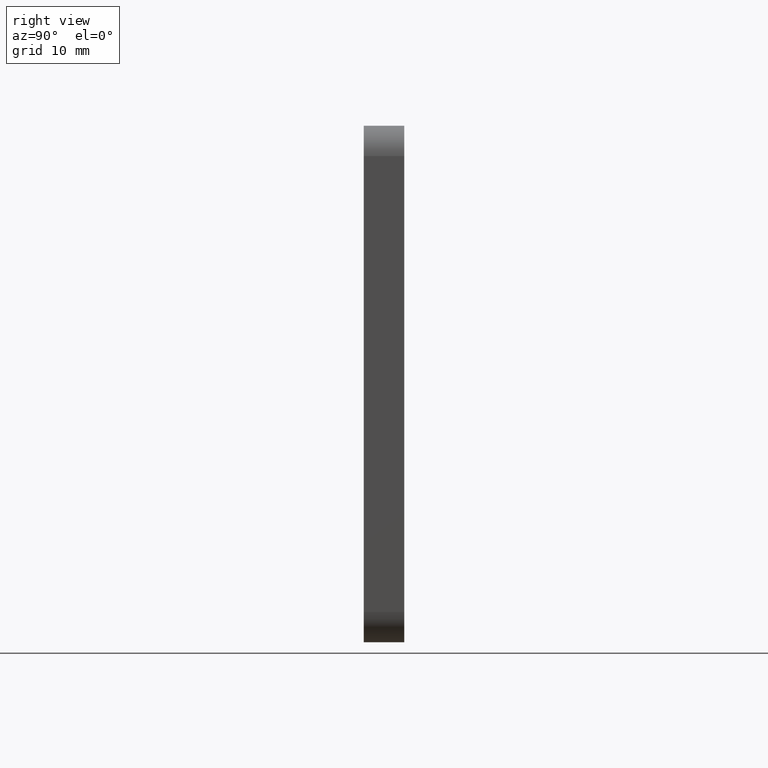
[diagram: clean part render]
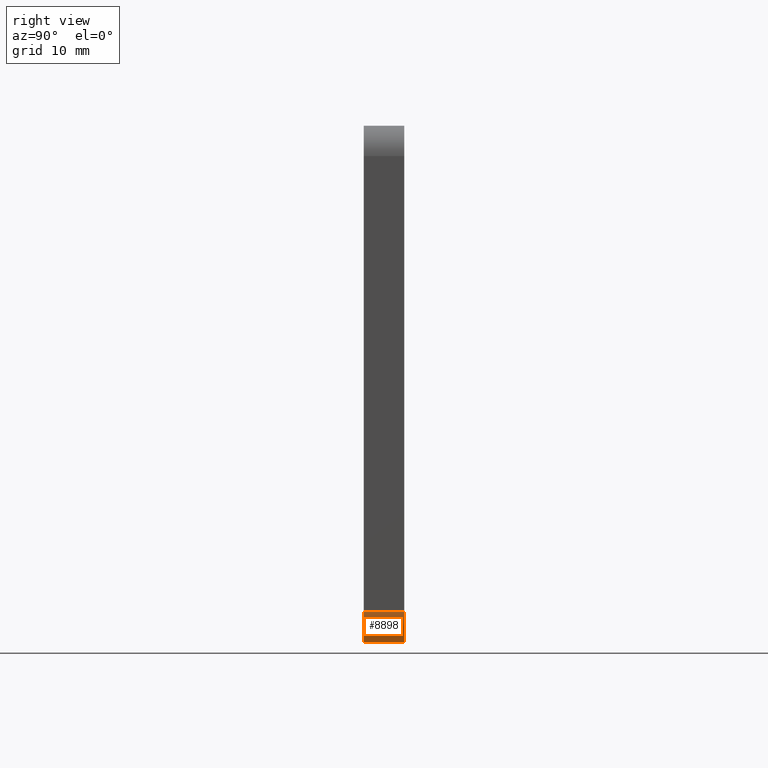
[diagram: same view with one face highlighted and labeled with its STEP entity id]
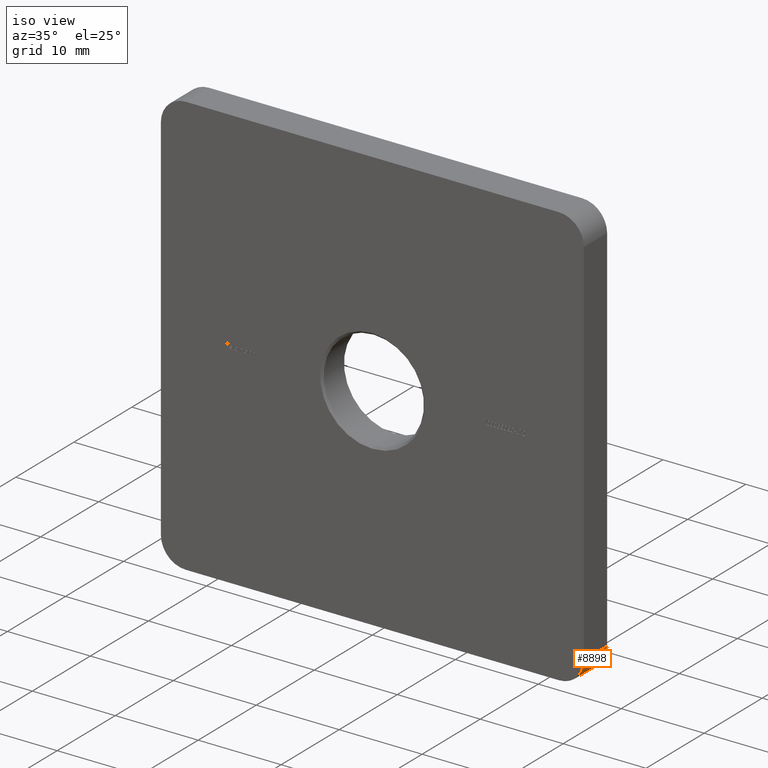
[diagram: same view with one face highlighted and labeled with its STEP entity id]
A machine part, right view. The second image highlights one B-rep face of the part: STEP entity #8898.
A second angle (iso view) of the same face is appended — the face is thin or edge-on in the first view.
In plain terms, the highlighted cylindrical surface (edge-blend (fillet) strip) has radius 3 mm, axis along (0, -1, 0).
Its self-contained STEP definition (entity closure, byte-faithful):
#397 = CYLINDRICAL_SURFACE ( 'NONE', #6448, 2.999999999999999100 ) ;
#945 = DIRECTION ( 'NONE',  ( 0.0000000000000000000, 0.0000000000000000000, 1.000000000000000000 ) ) ;
#4382 = EDGE_CURVE ( 'NONE', #10520, #13501, #6141, .T. ) ;
#4758 = CARTESIAN_POINT ( 'NONE',  ( 22.50000000000000000, 4.000000000000000000, -22.49999999999999600 ) ) ;
#4924 = CIRCLE ( 'NONE', #12203, 2.999999999999999100 ) ;
#4978 = ORIENTED_EDGE ( 'NONE', *, *, #4382, .F. ) ;
#5582 = CARTESIAN_POINT ( 'NONE',  ( 22.50000000000000000, 0.0000000000000000000, -25.49999999999999600 ) ) ;
#5760 = VECTOR ( 'NONE', #15004, 1000.000000000000000 ) ;
#6141 = LINE ( 'NONE', #8697, #5760 ) ;
#6448 = AXIS2_PLACEMENT_3D ( 'NONE', #9282, #9403, #9340 ) ;
#6852 = CIRCLE ( 'NONE', #11194, 2.999999999999999100 ) ;
#7097 = DIRECTION ( 'NONE',  ( 0.0000000000000000000, -1.000000000000000000, 0.0000000000000000000 ) ) ;
#7137 = DIRECTION ( 'NONE',  ( 0.0000000000000000000, 1.000000000000000000, 0.0000000000000000000 ) ) ;
#7626 = EDGE_CURVE ( 'NONE', #11392, #13284, #8806, .T. ) ;
#8563 = EDGE_LOOP ( 'NONE', ( #10015, #4978, #15656, #11448 ) ) ;
#8697 = CARTESIAN_POINT ( 'NONE',  ( 25.49999999999999600, 4.000000000000000000, -22.49999999999999600 ) ) ;
#8806 = LINE ( 'NONE', #15503, #15120 ) ;
#8898 = ADVANCED_FACE ( 'NONE', ( #14725 ), #397, .T. ) ;
#9282 = CARTESIAN_POINT ( 'NONE',  ( 22.50000000000000000, 4.000000000000000000, -22.49999999999999600 ) ) ;
#9340 = DIRECTION ( 'NONE',  ( 0.0000000000000000000, 0.0000000000000000000, -1.000000000000000000 ) ) ;
#9403 = DIRECTION ( 'NONE',  ( 0.0000000000000000000, -1.000000000000000000, 0.0000000000000000000 ) ) ;
#9751 = CARTESIAN_POINT ( 'NONE',  ( 25.49999999999999600, 4.000000000000000000, -22.49999999999999600 ) ) ;
#10015 = ORIENTED_EDGE ( 'NONE', *, *, #13475, .F. ) ;
#10399 = CARTESIAN_POINT ( 'NONE',  ( 25.49999999999999600, 0.0000000000000000000, -22.49999999999999600 ) ) ;
#10520 = VERTEX_POINT ( 'NONE', #10399 ) ;
#10555 = CARTESIAN_POINT ( 'NONE',  ( 22.50000000000000000, 0.0000000000000000000, -22.49999999999999600 ) ) ;
#11194 = AXIS2_PLACEMENT_3D ( 'NONE', #4758, #7137, #13332 ) ;
#11392 = VERTEX_POINT ( 'NONE', #12353 ) ;
#11448 = ORIENTED_EDGE ( 'NONE', *, *, #7626, .F. ) ;
#11796 = DIRECTION ( 'NONE',  ( -0.0000000000000000000, -1.000000000000000000, -0.0000000000000000000 ) ) ;
#12203 = AXIS2_PLACEMENT_3D ( 'NONE', #10555, #11796, #945 ) ;
#12353 = CARTESIAN_POINT ( 'NONE',  ( 22.50000000000000000, 4.000000000000000000, -25.49999999999999600 ) ) ;
#13284 = VERTEX_POINT ( 'NONE', #5582 ) ;
#13332 = DIRECTION ( 'NONE',  ( 0.0000000000000000000, 0.0000000000000000000, 1.000000000000000000 ) ) ;
#13368 = EDGE_CURVE ( 'NONE', #13284, #10520, #4924, .T. ) ;
#13475 = EDGE_CURVE ( 'NONE', #13501, #11392, #6852, .T. ) ;
#13501 = VERTEX_POINT ( 'NONE', #9751 ) ;
#14725 = FACE_OUTER_BOUND ( 'NONE', #8563, .T. ) ;
#15004 = DIRECTION ( 'NONE',  ( -0.0000000000000000000, 1.000000000000000000, -0.0000000000000000000 ) ) ;
#15120 = VECTOR ( 'NONE', #7097, 1000.000000000000000 ) ;
#15503 = CARTESIAN_POINT ( 'NONE',  ( 22.50000000000000000, 4.000000000000000000, -25.49999999999999600 ) ) ;
#15656 = ORIENTED_EDGE ( 'NONE', *, *, #13368, .F. ) ;